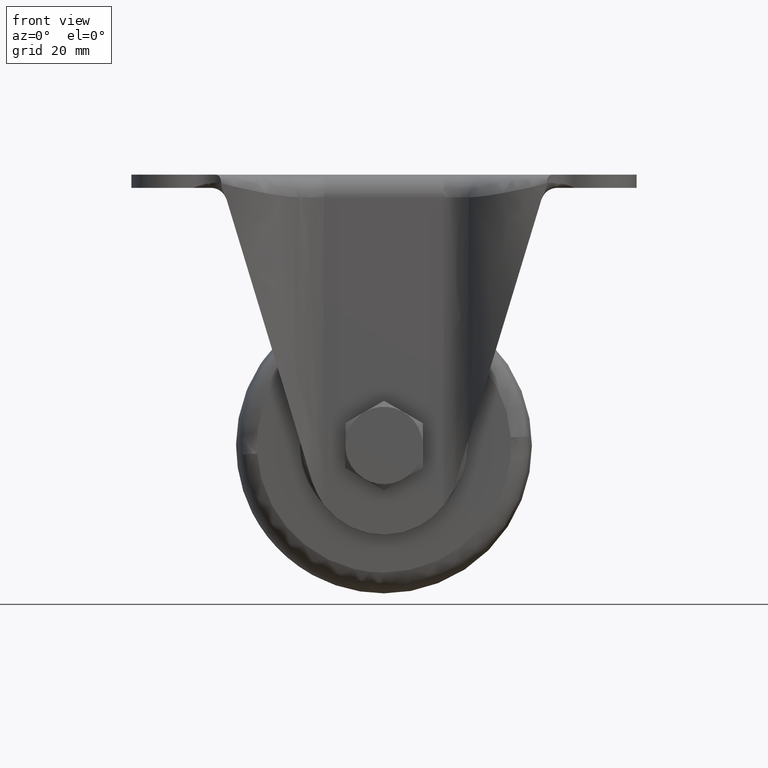
[diagram: clean part render]
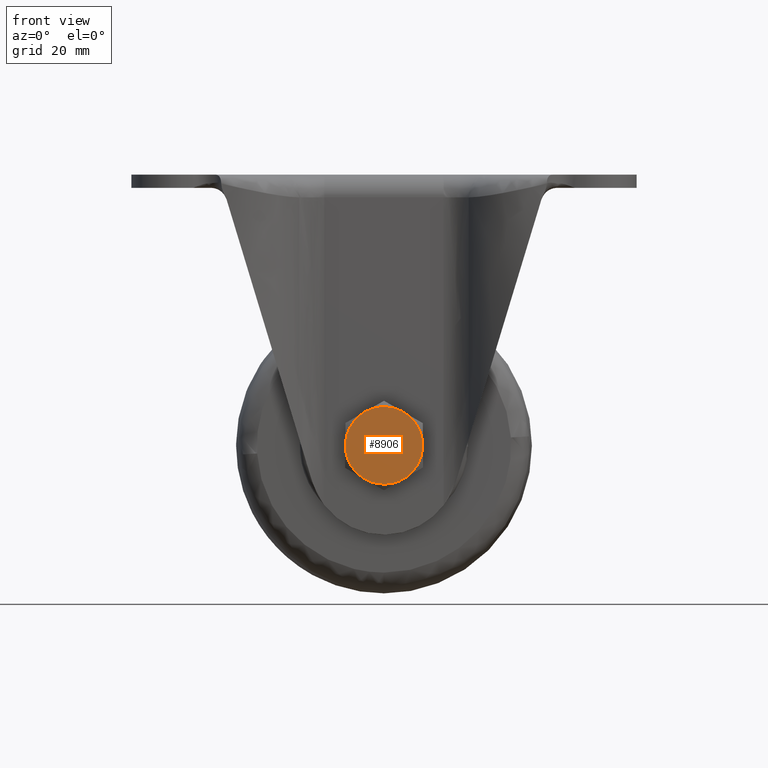
[diagram: same view with one face highlighted and labeled with its STEP entity id]
A machine part, front view. The second image highlights one B-rep face of the part: STEP entity #8906.
In plain terms, the highlighted face is a freeform B-spline surface patch.
Its self-contained STEP definition (entity closure, byte-faithful):
#8605=CARTESIAN_POINT('',(-4.274682052976714,-30.500000000000000,-66.846910462636288));
#8606=VERTEX_POINT('',#8605);
#8624=CARTESIAN_POINT('',(-8.499905000004219,-30.500000000000000,-59.540186950310499));
#8625=VERTEX_POINT('',#8624);
#8626=CARTESIAN_POINT('',(-4.274682052976723,-30.500000000000000,-66.846910462636316));
#8627=CARTESIAN_POINT('',(-8.476919134903081,-30.499999999999996,-64.401906194815098));
#8628=CARTESIAN_POINT('',(-8.499905000004219,-30.500000000000000,-59.540186950310499));
#8636=(BOUNDED_CURVE()B_SPLINE_CURVE(2,(#8626,#8627,#8628),.UNSPECIFIED.,.F.,.U.)CURVE()GEOMETRIC_REPRESENTATION_ITEM()QUASI_UNIFORM_CURVE()RATIONAL_B_SPLINE_CURVE((1.0,0.868039358096924,1.0))REPRESENTATION_ITEM(''));
#8637=EDGE_CURVE('',#8606,#8625,#8636,.T.);
#8673=CARTESIAN_POINT('',(-8.499905000004219,-30.500000000000000,-59.459813049689501));
#8674=VERTEX_POINT('',#8673);
#8692=CARTESIAN_POINT('',(-4.274458004533449,-30.500000000000000,-52.152959182942013));
#8693=VERTEX_POINT('',#8692);
#8694=CARTESIAN_POINT('',(-8.499905000004219,-30.500000000000000,-59.459813049689501));
#8695=CARTESIAN_POINT('',(-8.476918321673178,-30.499999999999996,-54.597921799674481));
#8696=CARTESIAN_POINT('',(-4.274458004533448,-30.500000000000000,-52.152959182942013));
#8704=(BOUNDED_CURVE()B_SPLINE_CURVE(2,(#8694,#8695,#8696),.UNSPECIFIED.,.F.,.U.)CURVE()GEOMETRIC_REPRESENTATION_ITEM()QUASI_UNIFORM_CURVE()RATIONAL_B_SPLINE_CURVE((1.0,0.868031787600744,1.0))REPRESENTATION_ITEM(''));
#8705=EDGE_CURVE('',#8674,#8693,#8704,.T.);
#8749=CARTESIAN_POINT('',(-4.225269698499375,-30.500000000000000,-66.875438697120202));
#8750=VERTEX_POINT('',#8749);
#8831=CARTESIAN_POINT('',(-4.225494612968195,-30.500000000000000,-52.124690157301004));
#8832=VERTEX_POINT('',#8831);
#8848=CARTESIAN_POINT('',(-4.225494612968195,-30.500000000000000,-52.124690157301004));
#8849=CARTESIAN_POINT('',(-3.803824497031437,-30.499999999999989,-51.883081679719581));
#8850=CARTESIAN_POINT('',(-2.813544062292475,-30.500000000000028,-51.423464390429693));
#8851=CARTESIAN_POINT('',(-1.367640397405348,-30.500000000000028,-51.065720037373573));
#8852=CARTESIAN_POINT('',(0.299008630221618,-30.500000000000050,-50.953937584742093));
#8853=CARTESIAN_POINT('',(1.895357670225156,-30.499999999999979,-51.147898994384420));
#8854=CARTESIAN_POINT('',(3.432984062575890,-30.500000000000011,-51.680389053688202));
#8855=CARTESIAN_POINT('',(4.634015923579306,-30.500000000000028,-52.337708007180957));
#8856=CARTESIAN_POINT('',(5.707293974231769,-30.499999999999989,-53.149863843601047));
#8857=CARTESIAN_POINT('',(6.811580966905082,-30.499999999999979,-54.312290146993178));
#8858=CARTESIAN_POINT('',(7.678366674332127,-30.500000000000210,-55.721788746388121));
#8859=CARTESIAN_POINT('',(8.221557505727569,-30.499999999999648,-57.204434952981352));
#8860=CARTESIAN_POINT('',(8.491740837770934,-30.500000000000281,-58.594423285560730));
#8861=CARTESIAN_POINT('',(8.527655133089390,-30.499999999998629,-60.057917332792279));
#8862=CARTESIAN_POINT('',(8.315726384798683,-30.500000000000512,-61.412408687006852));
#8863=CARTESIAN_POINT('',(7.875295405756511,-30.499999999999300,-62.805233333994728));
#8864=CARTESIAN_POINT('',(7.248861948451995,-30.500000000001471,-64.027129570742446));
#8865=CARTESIAN_POINT('',(6.402336720947966,-30.499999999998341,-65.132553208167067));
#8866=CARTESIAN_POINT('',(5.312693202709261,-30.500000000002359,-66.207639281384616));
#8867=CARTESIAN_POINT('',(3.928714905024373,-30.499999999999350,-67.119196448825079));
#8868=CARTESIAN_POINT('',(2.295620957517443,-30.499999999999929,-67.729690941285568));
#8869=CARTESIAN_POINT('',(0.925455909320486,-30.500000000000071,-67.982143982591822));
#8870=CARTESIAN_POINT('',(-0.303514302475398,-30.499999999999950,-68.020370443440854));
#8871=CARTESIAN_POINT('',(-1.618420803909458,-30.500000000000419,-67.883632033840982));
#8872=CARTESIAN_POINT('',(-2.941793421249250,-30.499999999998760,-67.521582544479585));
#8873=CARTESIAN_POINT('',(-3.843739245236849,-30.500000000001918,-67.094030504463461));
#8874=CARTESIAN_POINT('',(-4.225269698499375,-30.500000000000000,-66.875438697120202));
#8875=B_SPLINE_CURVE_WITH_KNOTS('',3,(#8848,#8849,#8850,#8851,#8852,#8853,#8854,#8855,#8856,#8857,#8858,#8859,#8860,#8861,#8862,#8863,#8864,#8865,#8866,#8867,#8868,#8869,#8870,#8871,#8872,#8873,#8874),.UNSPECIFIED.,.F.,.U.,(4,1,1,1,1,1,1,1,1,1,1,1,1,1,1,1,1,1,1,1,1,1,1,1,4),(0.000000395594888,1.457964102890109,3.263170167945575,4.443487048893068,6.456973891342251,8.053855926171600,9.303605832505021,10.553327653231170,12.080762762729909,14.094186428424100,15.482812050812189,16.801985015175038,18.329451086745589,19.856927969584699,20.898367208392528,22.703583928075279,23.953213230041790,25.064069392095991,27.285867840076609,28.882754356657792,30.271362017604432,31.451669166172891,32.562581887556483,34.228870775733853,35.548017759836128),.UNSPECIFIED.);
#8876=EDGE_CURVE('',#8832,#8750,#8875,.T.);
#8881=CARTESIAN_POINT('',(9.349145220785813,-30.500000000000000,-68.849120345401275));
#8882=CARTESIAN_POINT('',(9.349145220785813,-30.500000000000000,-50.150878532474621));
#8883=CARTESIAN_POINT('',(-9.349050677729998,-30.500000000000000,-68.849120345401275));
#8884=CARTESIAN_POINT('',(-9.349050677729998,-30.500000000000000,-50.150878532474621));
#8885=B_SPLINE_SURFACE_WITH_KNOTS('',1,1,((#8881,#8883),(#8882,#8884)),.UNSPECIFIED.,.F.,.F.,.U.,(2,2),(2,2),(0.0,18.698241812926650),(0.0,18.698195898515809),.UNSPECIFIED.);
#8886=CARTESIAN_POINT('',(-4.225269698499375,-30.500000000000000,-66.875438697120202));
#8887=CARTESIAN_POINT('',(-4.274682052976714,-30.500000000000000,-66.846910462636288));
#8888=QUASI_UNIFORM_CURVE('',1,(#8886,#8887),.UNSPECIFIED.,.F.,.U.);
#8889=EDGE_CURVE('',#8750,#8606,#8888,.T.);
#8890=ORIENTED_EDGE('',*,*,#8889,.F.);
#8891=ORIENTED_EDGE('',*,*,#8876,.F.);
#8892=CARTESIAN_POINT('',(-4.274458004533449,-30.500000000000000,-52.152959182942013));
#8893=CARTESIAN_POINT('',(-4.225494612968195,-30.500000000000000,-52.124690157301004));
#8894=QUASI_UNIFORM_CURVE('',1,(#8892,#8893),.UNSPECIFIED.,.F.,.U.);
#8895=EDGE_CURVE('',#8693,#8832,#8894,.T.);
#8896=ORIENTED_EDGE('',*,*,#8895,.F.);
#8897=ORIENTED_EDGE('',*,*,#8705,.F.);
#8898=CARTESIAN_POINT('',(-8.499905000004219,-30.500000000000000,-59.540186950310499));
#8899=CARTESIAN_POINT('',(-8.499905000004219,-30.500000000000000,-59.459813049689501));
#8900=QUASI_UNIFORM_CURVE('',1,(#8898,#8899),.UNSPECIFIED.,.F.,.U.);
#8901=EDGE_CURVE('',#8625,#8674,#8900,.T.);
#8902=ORIENTED_EDGE('',*,*,#8901,.F.);
#8903=ORIENTED_EDGE('',*,*,#8637,.F.);
#8904=EDGE_LOOP('',(#8890,#8891,#8896,#8897,#8902,#8903));
#8905=FACE_OUTER_BOUND('',#8904,.T.);
#8906=ADVANCED_FACE('',(#8905),#8885,.T.);